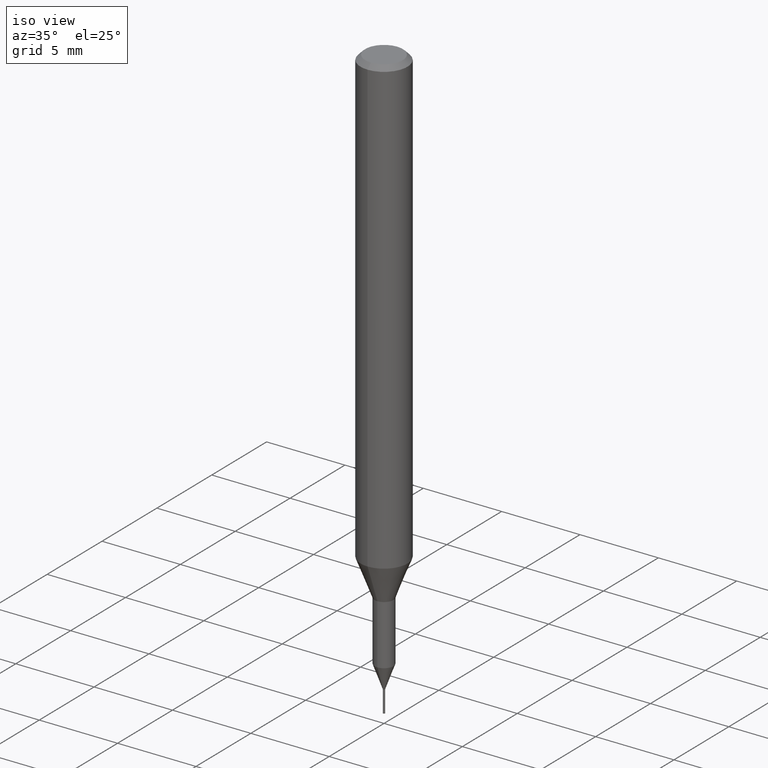
[diagram: clean part render]
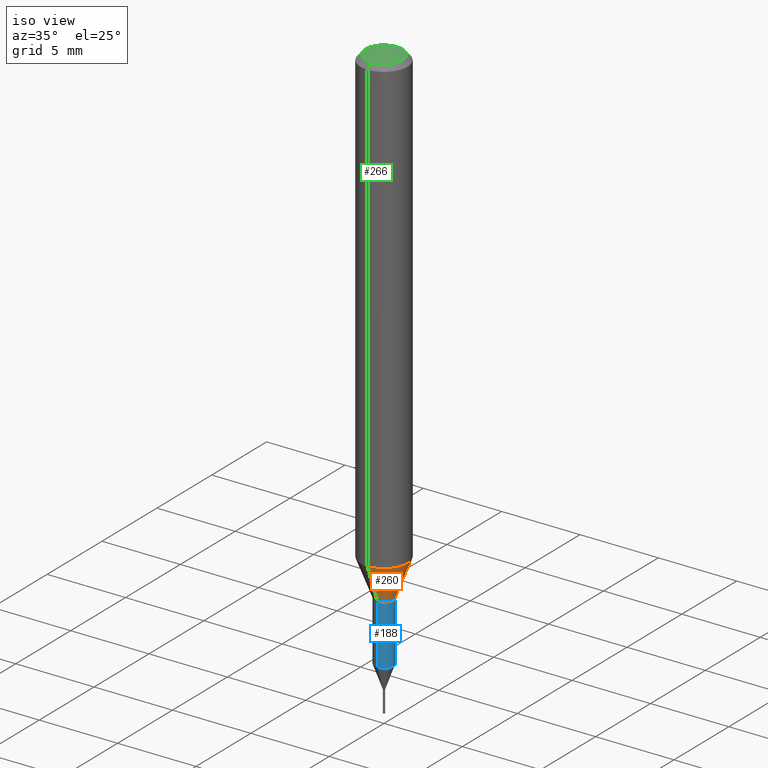
[diagram: same view with three faces highlighted in distinct colors, each labeled with its STEP entity id]
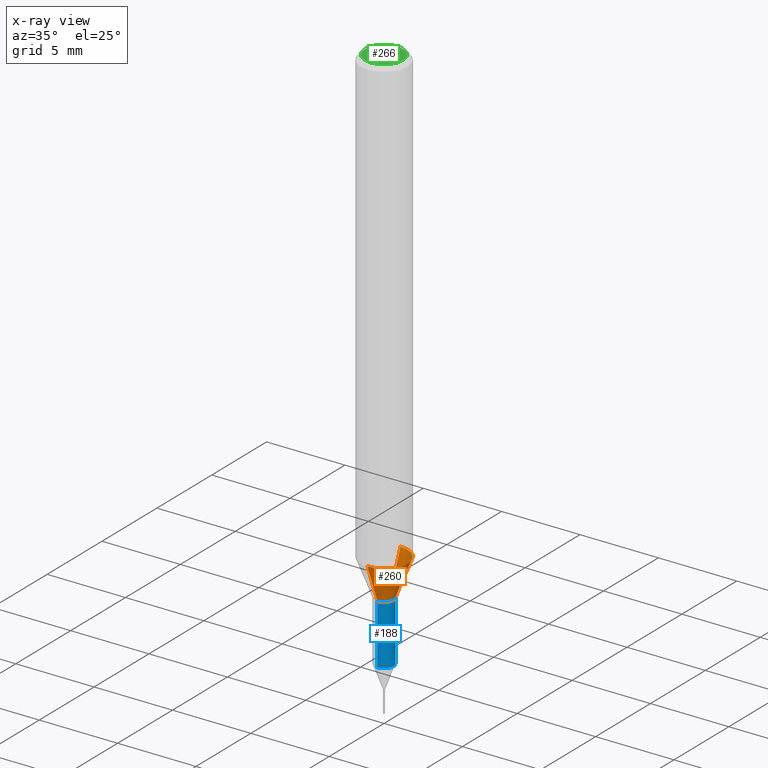
[diagram: x-ray of the same camera — body ghosted, the three highlighted faces saturated]
A machine part, iso view with three faces highlighted in distinct colors.
The next image is the same camera in x-ray (body ghosted, the three faces saturated) — at least one of them is partly hidden behind the body in this view.
Their STEP definitions:

[orange] entity #260 — the highlighted conical surface has half-angle 20.997 deg.
#114=VERTEX_POINT('',#291);
#142=EDGE_CURVE('',#114,#162,#324,.T.);
#154=VERTEX_POINT('',#338);
#162=VERTEX_POINT('',#346);
#164=VERTEX_POINT('',#348);
#170=EDGE_CURVE('',#164,#114,#355,.T.);
#194=EDGE_CURVE('',#164,#154,#384,.T.);
#224=EDGE_CURVE('',#162,#154,#417,.T.);
#260=ADVANCED_FACE('',(#455),#456,.T.);
#291=CARTESIAN_POINT('',(0.0,0.6,-31.3));
#324=CIRCLE('',#525,0.6);
#338=CARTESIAN_POINT('',(1.83690953073357E-016,-1.5,-28.955));
#346=CARTESIAN_POINT('',(7.34763812293426E-017,-0.6,-31.3));
#348=CARTESIAN_POINT('',(0.0,1.5,-28.955));
#355=LINE('',#566,#567);
#384=CIRCLE('',#602,1.5);
#417=LINE('',#648,#649);
#455=FACE_OUTER_BOUND('',#693,.T.);
#456=CONICAL_SURFACE('',#694,1.05,0.366459241971866);
#525=AXIS2_PLACEMENT_3D('',#755,#756,#757);
#566=CARTESIAN_POINT('',(-1.2858366715135E-016,1.05,-30.1275));
#567=VECTOR('',#788,1.0);
#602=AXIS2_PLACEMENT_3D('',#838,#839,#840);
#648=CARTESIAN_POINT('',(1.2858366715135E-016,-1.05,-30.1275));
#649=VECTOR('',#884,1.0);
#693=EDGE_LOOP('',(#916,#917,#918,#919));
#694=AXIS2_PLACEMENT_3D('',#920,#921,#922);
#755=CARTESIAN_POINT('',(0.0,0.0,-31.3));
#756=DIRECTION('',(0.0,0.0,-1.0));
#757=DIRECTION('',(0.0,1.0,0.0));
#788=DIRECTION('',(4.38791184365088E-017,-0.358312026550805,-0.93360189140182));
#838=CARTESIAN_POINT('',(0.0,0.0,-28.955));
#839=DIRECTION('',(0.0,0.0,-1.0));
#840=DIRECTION('',(0.0,1.0,0.0));
#884=DIRECTION('',(4.38791184365088E-017,-0.358312026550805,0.93360189140182));
#916=ORIENTED_EDGE('',*,*,#170,.F.);
#917=ORIENTED_EDGE('',*,*,#194,.T.);
#918=ORIENTED_EDGE('',*,*,#224,.F.);
#919=ORIENTED_EDGE('',*,*,#142,.F.);
#920=CARTESIAN_POINT('',(0.0,0.0,-30.1275));
#921=DIRECTION('',(-0.0,-0.0,1.0));
#922=DIRECTION('',(0.0,1.0,0.0));

[blue] entity #188 — the highlighted cylindrical surface (edge-blend (fillet) strip) has radius 0.5999 mm, axis along (-0, -0, 1).
#136=VERTEX_POINT('',#318);
#138=EDGE_CURVE('',#140,#136,#320,.T.);
#140=VERTEX_POINT('',#322);
#166=EDGE_CURVE('',#178,#140,#350,.T.);
#176=EDGE_CURVE('',#178,#250,#361,.T.);
#178=VERTEX_POINT('',#363);
#188=ADVANCED_FACE('',(#375),#376,.T.);
#204=EDGE_CURVE('',#136,#250,#396,.T.);
#250=VERTEX_POINT('',#445);
#318=CARTESIAN_POINT('',(7.34702581975735E-017,-0.59995,-35.116));
#320=CIRCLE('',#520,0.59995);
#322=CARTESIAN_POINT('',(0.0,0.59995,-35.116));
#350=LINE('',#559,#560);
#361=CIRCLE('',#576,0.59995);
#363=CARTESIAN_POINT('',(0.0,0.59995,-31.3));
#375=FACE_OUTER_BOUND('',#592,.T.);
#376=CYLINDRICAL_SURFACE('',#593,0.59995);
#396=LINE('',#618,#619);
#445=CARTESIAN_POINT('',(7.34702581975735E-017,-0.59995,-31.3));
#520=AXIS2_PLACEMENT_3D('',#752,#753,#754);
#559=CARTESIAN_POINT('',(-7.34702581975735E-017,0.59995,-33.208));
#560=VECTOR('',#779,1.0);
#576=AXIS2_PLACEMENT_3D('',#790,#791,#792);
#592=EDGE_LOOP('',(#816,#817,#818,#819));
#593=AXIS2_PLACEMENT_3D('',#820,#821,#822);
#618=CARTESIAN_POINT('',(7.34702581975735E-017,-0.59995,-33.208));
#619=VECTOR('',#859,1.0);
#752=CARTESIAN_POINT('',(0.0,0.0,-35.116));
#753=DIRECTION('',(0.0,0.0,-1.0));
#754=DIRECTION('',(0.0,1.0,0.0));
#779=DIRECTION('',(0.0,0.0,-1.0));
#790=CARTESIAN_POINT('',(0.0,0.0,-31.3));
#791=DIRECTION('',(0.0,0.0,-1.0));
#792=DIRECTION('',(0.0,1.0,0.0));
#816=ORIENTED_EDGE('',*,*,#166,.F.);
#817=ORIENTED_EDGE('',*,*,#176,.T.);
#818=ORIENTED_EDGE('',*,*,#204,.F.);
#819=ORIENTED_EDGE('',*,*,#138,.F.);
#820=CARTESIAN_POINT('',(0.0,0.0,-33.208));
#821=DIRECTION('',(-0.0,-0.0,1.0));
#822=DIRECTION('',(0.0,1.0,0.0));
#859=DIRECTION('',(-0.0,-0.0,1.0));

[green] entity #266 — the highlighted planar face has unit normal (-0, 0, 1).
#112=EDGE_CURVE('',#210,#120,#289,.T.);
#120=VERTEX_POINT('',#297);
#180=EDGE_CURVE('',#120,#210,#365,.T.);
#210=VERTEX_POINT('',#402);
#266=ADVANCED_FACE('',(#463),#464,.T.);
#289=CIRCLE('',#480,1.2);
#297=CARTESIAN_POINT('',(1.46952762458685E-016,-1.2,0.0));
#365=CIRCLE('',#581,1.2);
#402=CARTESIAN_POINT('',(0.0,1.2,0.0));
#463=FACE_OUTER_BOUND('',#701,.T.);
#464=PLANE('',#702);
#480=AXIS2_PLACEMENT_3D('',#708,#709,#710);
#581=AXIS2_PLACEMENT_3D('',#793,#794,#795);
#701=EDGE_LOOP('',(#932,#933));
#702=AXIS2_PLACEMENT_3D('',#934,#935,#936);
#708=CARTESIAN_POINT('',(0.0,0.0,0.0));
#709=DIRECTION('',(0.0,0.0,-1.0));
#710=DIRECTION('',(0.0,1.0,0.0));
#793=CARTESIAN_POINT('',(0.0,0.0,0.0));
#794=DIRECTION('',(0.0,0.0,-1.0));
#795=DIRECTION('',(0.0,1.0,0.0));
#932=ORIENTED_EDGE('',*,*,#112,.F.);
#933=ORIENTED_EDGE('',*,*,#180,.F.);
#934=CARTESIAN_POINT('',(0.0,0.6,0.0));
#935=DIRECTION('',(-0.0,0.0,1.0));
#936=DIRECTION('',(0.0,-1.0,0.0));